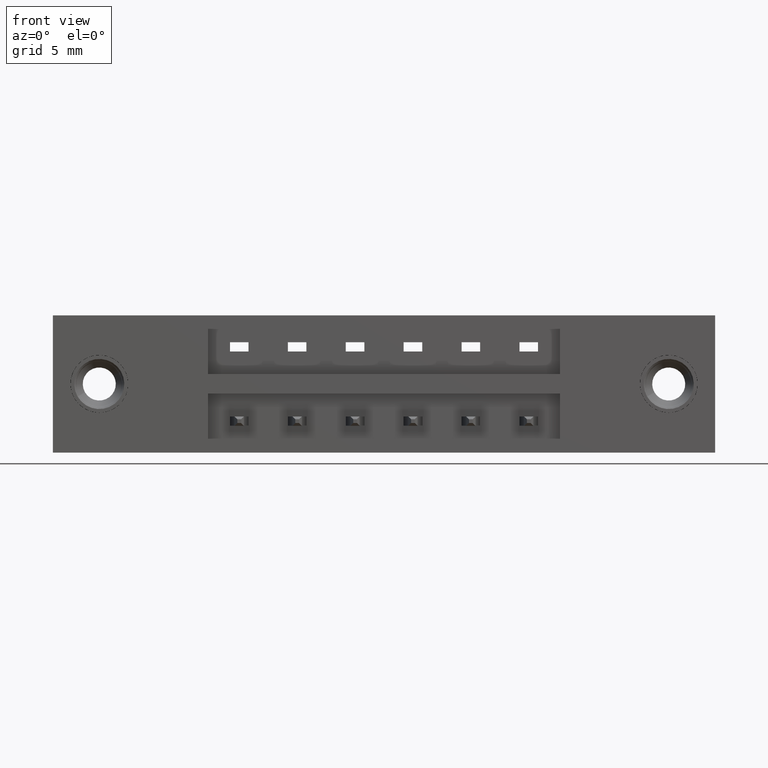
[diagram: clean part render]
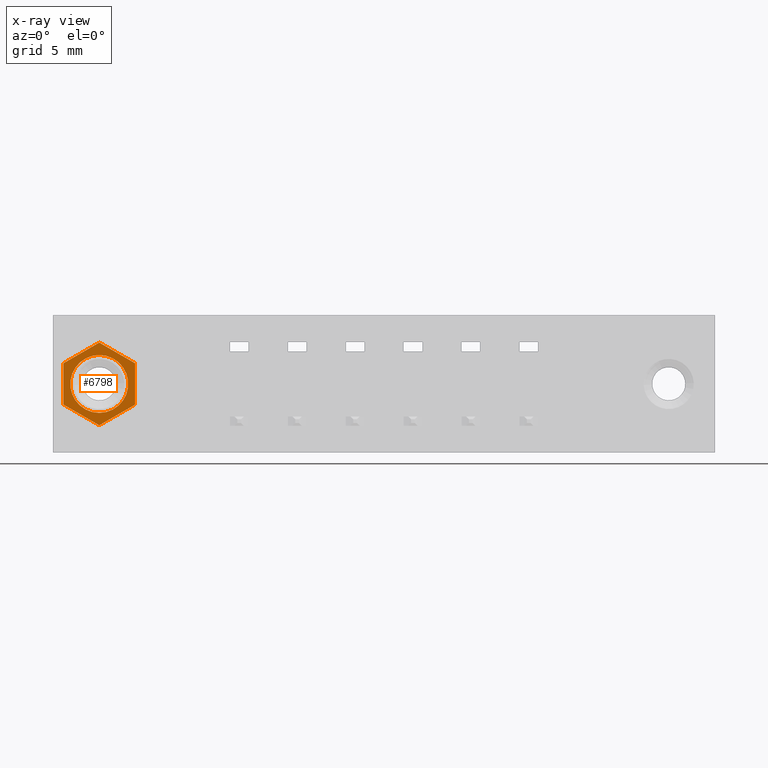
[diagram: x-ray — body ghosted, one internal face saturated and labeled with its STEP entity id]
A machine part, front view, then the same camera in x-ray: the body is ghosted and one INTERNAL B-rep face — a face not visible from any outside direction — is saturated and labeled: STEP entity #6798.
In plain terms, the highlighted planar face has unit normal (0, 1, 0).
Its self-contained STEP definition (entity closure, byte-faithful):
#34 = ORIENTED_EDGE ( 'NONE', *, *, #5606, .T. ) ;
#43 = ORIENTED_EDGE ( 'NONE', *, *, #2979, .T. ) ;
#126 = LINE ( 'NONE', #2509, #3867 ) ;
#179 = CARTESIAN_POINT ( 'NONE',  ( 0.2215000000000001400, 0.2080000000000000200, -0.1292856990231998300 ) ) ;
#202 = CIRCLE ( 'NONE', #4312, 0.07800000000000001400 ) ;
#276 = DIRECTION ( 'NONE',  ( 0.8660254037844386000, 0.0000000000000000000, 0.5000000000000002200 ) ) ;
#292 = FACE_BOUND ( 'NONE', #304, .T. ) ;
#304 = EDGE_LOOP ( 'NONE', ( #1175, #7350 ) ) ;
#557 = EDGE_CURVE ( 'NONE', #6545, #6019, #8808, .T. ) ;
#937 = CARTESIAN_POINT ( 'NONE',  ( 0.1250000000000001900, 0.2080000000000000200, -0.2964286019535964900 ) ) ;
#1159 = DIRECTION ( 'NONE',  ( -0.0000000000000000000, -1.000000000000000000, -0.0000000000000000000 ) ) ;
#1175 = ORIENTED_EDGE ( 'NONE', *, *, #9469, .T. ) ;
#1441 = LINE ( 'NONE', #3016, #7026 ) ;
#2099 = ORIENTED_EDGE ( 'NONE', *, *, #7893, .T. ) ;
#2262 = DIRECTION ( 'NONE',  ( 0.0000000000000000000, 0.0000000000000000000, -1.000000000000000000 ) ) ;
#2265 = AXIS2_PLACEMENT_3D ( 'NONE', #7484, #3106, #8212 ) ;
#2305 = EDGE_LOOP ( 'NONE', ( #9175, #7752, #43, #2099, #34, #5921 ) ) ;
#2375 = CIRCLE ( 'NONE', #2265, 0.07800000000000001400 ) ;
#2509 = CARTESIAN_POINT ( 'NONE',  ( 0.02850000000000018800, 0.2080000000000000200, -0.2407143009767975500 ) ) ;
#2514 = CARTESIAN_POINT ( 'NONE',  ( 0.02850000000000018800, 0.2080000000000000200, -0.1292856990231998300 ) ) ;
#2979 = EDGE_CURVE ( 'NONE', #7572, #6212, #126, .T. ) ;
#3016 = CARTESIAN_POINT ( 'NONE',  ( 0.2215000000000001400, 0.2080000000000000200, -0.2407143009767976600 ) ) ;
#3024 = CARTESIAN_POINT ( 'NONE',  ( 0.1250000000000001700, 0.2080000000000000200, -0.07357139804640093500 ) ) ;
#3106 = DIRECTION ( 'NONE',  ( -0.0000000000000000000, -1.000000000000000000, -0.0000000000000000000 ) ) ;
#3363 = VECTOR ( 'NONE', #7617, 39.37007874015749600 ) ;
#3451 = LINE ( 'NONE', #2514, #6644 ) ;
#3749 = DIRECTION ( 'NONE',  ( -0.8660254037844386000, 0.0000000000000000000, -0.4999999999999998900 ) ) ;
#3867 = VECTOR ( 'NONE', #4231, 39.37007874015748100 ) ;
#3967 = LINE ( 'NONE', #937, #5943 ) ;
#4231 = DIRECTION ( 'NONE',  ( 0.0000000000000000000, 0.0000000000000000000, 1.000000000000000000 ) ) ;
#4261 = DIRECTION ( 'NONE',  ( 0.0000000000000000000, -0.0000000000000000000, 1.000000000000000000 ) ) ;
#4312 = AXIS2_PLACEMENT_3D ( 'NONE', #5593, #1159, #6307 ) ;
#4422 = CARTESIAN_POINT ( 'NONE',  ( 0.02850000000000018800, 0.2080000000000000200, -0.2407143009767975500 ) ) ;
#4720 = CARTESIAN_POINT ( 'NONE',  ( 0.2215000000000001400, 0.2080000000000000200, -0.1292856990231998300 ) ) ;
#4724 = EDGE_CURVE ( 'NONE', #6019, #6957, #1441, .T. ) ;
#4729 = VECTOR ( 'NONE', #2262, 39.37007874015748100 ) ;
#4751 = FACE_OUTER_BOUND ( 'NONE', #2305, .T. ) ;
#4845 = EDGE_CURVE ( 'NONE', #6957, #7572, #3967, .T. ) ;
#5358 = CARTESIAN_POINT ( 'NONE',  ( 0.1250000000000001900, 0.2080000000000000200, -0.1069999999999986900 ) ) ;
#5465 = CARTESIAN_POINT ( 'NONE',  ( 0.1250000000000001700, 0.2080000000000000200, -0.07357139804640093500 ) ) ;
#5593 = CARTESIAN_POINT ( 'NONE',  ( 0.1250000000000001900, 0.2080000000000000200, -0.1849999999999987200 ) ) ;
#5606 = EDGE_CURVE ( 'NONE', #8917, #6545, #9199, .T. ) ;
#5715 = PLANE ( 'NONE',  #6380 ) ;
#5921 = ORIENTED_EDGE ( 'NONE', *, *, #557, .T. ) ;
#5943 = VECTOR ( 'NONE', #6083, 39.37007874015748900 ) ;
#6019 = VERTEX_POINT ( 'NONE', #8784 ) ;
#6083 = DIRECTION ( 'NONE',  ( -0.8660254037844384900, 0.0000000000000000000, 0.5000000000000003300 ) ) ;
#6166 = EDGE_CURVE ( 'NONE', #6222, #9495, #202, .T. ) ;
#6212 = VERTEX_POINT ( 'NONE', #9255 ) ;
#6222 = VERTEX_POINT ( 'NONE', #7042 ) ;
#6307 = DIRECTION ( 'NONE',  ( 0.0000000000000000000, 0.0000000000000000000, 1.000000000000000000 ) ) ;
#6380 = AXIS2_PLACEMENT_3D ( 'NONE', #7134, #8629, #4261 ) ;
#6543 = CARTESIAN_POINT ( 'NONE',  ( 0.1250000000000001900, 0.2080000000000000200, -0.2964286019535964900 ) ) ;
#6545 = VERTEX_POINT ( 'NONE', #179 ) ;
#6644 = VECTOR ( 'NONE', #276, 39.37007874015747400 ) ;
#6798 = ADVANCED_FACE ( 'NONE', ( #4751, #292 ), #5715, .T. ) ;
#6957 = VERTEX_POINT ( 'NONE', #6543 ) ;
#7026 = VECTOR ( 'NONE', #3749, 39.37007874015748900 ) ;
#7042 = CARTESIAN_POINT ( 'NONE',  ( 0.1250000000000001900, 0.2080000000000000200, -0.2629999999999987300 ) ) ;
#7134 = CARTESIAN_POINT ( 'NONE',  ( 0.1250000000000001900, 0.2080000000000000200, -0.2964286019535964900 ) ) ;
#7350 = ORIENTED_EDGE ( 'NONE', *, *, #6166, .T. ) ;
#7484 = CARTESIAN_POINT ( 'NONE',  ( 0.1250000000000001900, 0.2080000000000000200, -0.1849999999999987200 ) ) ;
#7572 = VERTEX_POINT ( 'NONE', #4422 ) ;
#7617 = DIRECTION ( 'NONE',  ( 0.8660254037844384900, 0.0000000000000000000, -0.5000000000000002200 ) ) ;
#7752 = ORIENTED_EDGE ( 'NONE', *, *, #4845, .T. ) ;
#7893 = EDGE_CURVE ( 'NONE', #6212, #8917, #3451, .T. ) ;
#8212 = DIRECTION ( 'NONE',  ( 0.0000000000000000000, 0.0000000000000000000, 1.000000000000000000 ) ) ;
#8629 = DIRECTION ( 'NONE',  ( 0.0000000000000000000, 1.000000000000000000, 0.0000000000000000000 ) ) ;
#8784 = CARTESIAN_POINT ( 'NONE',  ( 0.2215000000000001400, 0.2080000000000000200, -0.2407143009767976600 ) ) ;
#8808 = LINE ( 'NONE', #4720, #4729 ) ;
#8917 = VERTEX_POINT ( 'NONE', #3024 ) ;
#9175 = ORIENTED_EDGE ( 'NONE', *, *, #4724, .T. ) ;
#9199 = LINE ( 'NONE', #5465, #3363 ) ;
#9255 = CARTESIAN_POINT ( 'NONE',  ( 0.02850000000000018800, 0.2080000000000000200, -0.1292856990231998300 ) ) ;
#9469 = EDGE_CURVE ( 'NONE', #9495, #6222, #2375, .T. ) ;
#9495 = VERTEX_POINT ( 'NONE', #5358 ) ;